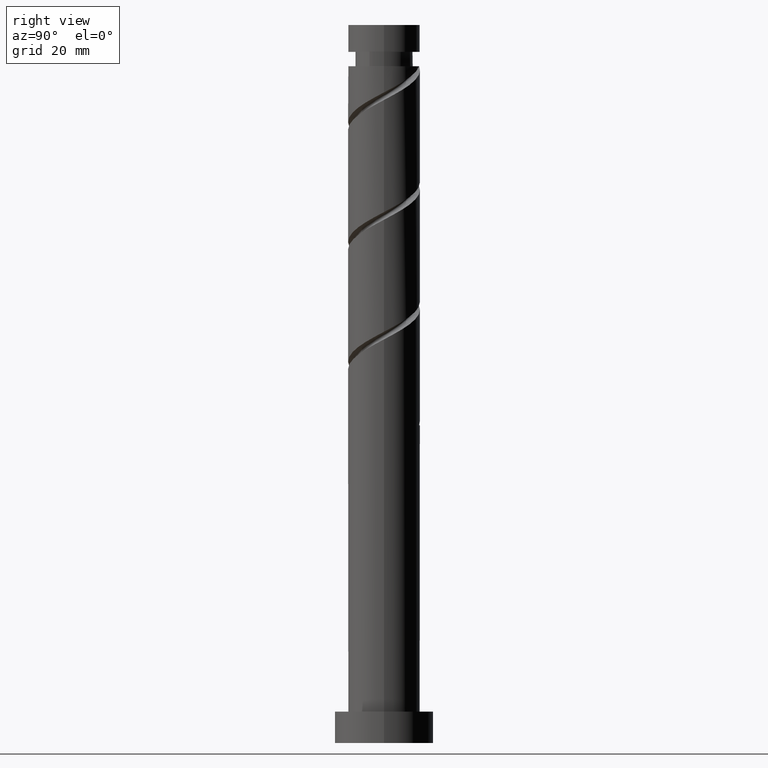
[diagram: clean part render]
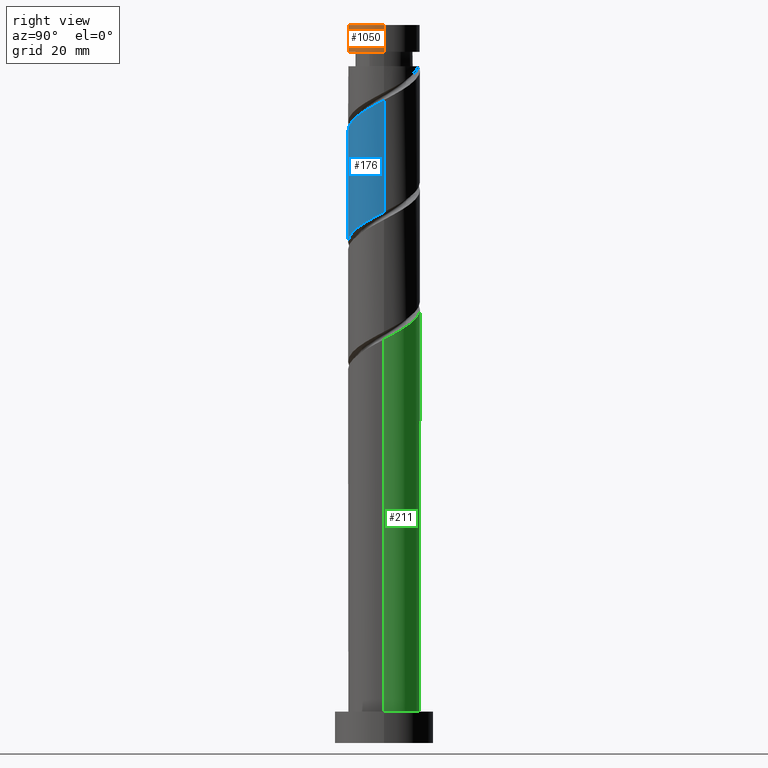
[diagram: same view with three faces highlighted in distinct colors, each labeled with its STEP entity id]
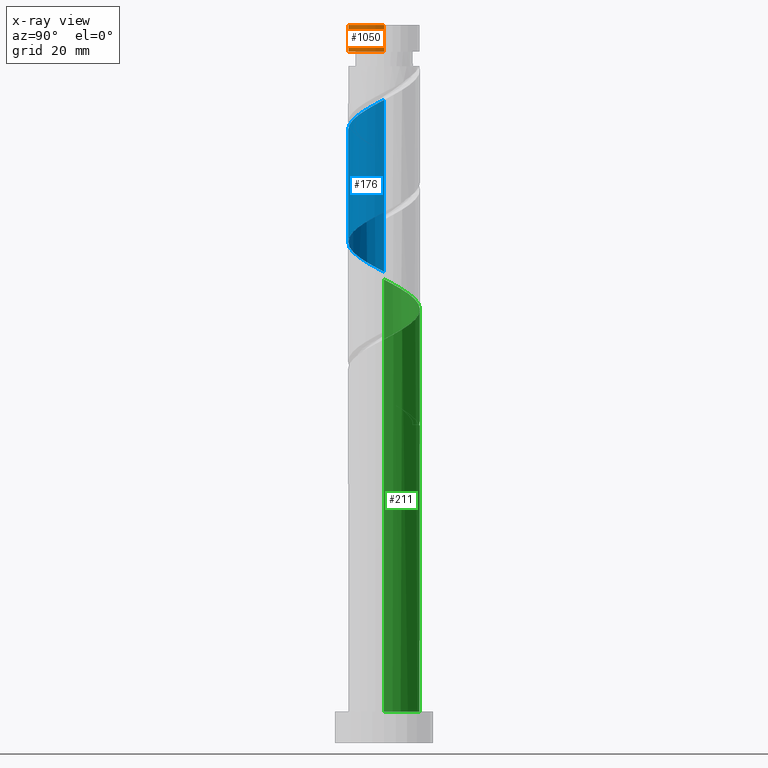
[diagram: x-ray of the same camera — body ghosted, the three highlighted faces saturated]
A machine part, right view with three faces highlighted in distinct colors.
The next image is the same camera in x-ray (body ghosted, the three faces saturated) — at least one of them is partly hidden behind the body in this view.
Their STEP definitions:

[orange] entity #1050 — the highlighted cylindrical surface (edge-blend (fillet) strip) has radius 8 mm, axis along (-0, -0, -1).
#19 = DIRECTION ( 'NONE',  ( -0.000000000000000000, -0.000000000000000000, -1.000000000000000000 ) ) ;
#96 = VERTEX_POINT ( 'NONE', #735 ) ;
#110 = CARTESIAN_POINT ( 'NONE',  ( -8.000000000000000000, 0.000000000000000000, 160.0000000000000000 ) ) ;
#141 = CIRCLE ( 'NONE', #1290, 7.999999999999994671 ) ;
#198 = CARTESIAN_POINT ( 'NONE',  ( 7.999999999999994671, 9.797174393178823685E-16, 153.9992103637192429 ) ) ;
#223 = EDGE_LOOP ( 'NONE', ( #719, #844, #999, #1308 ) ) ;
#235 = EDGE_CURVE ( 'NONE', #1448, #96, #141, .T. ) ;
#256 = DIRECTION ( 'NONE',  ( -1.000000000000000000, 0.000000000000000000, 0.000000000000000000 ) ) ;
#308 = VERTEX_POINT ( 'NONE', #693 ) ;
#370 = CARTESIAN_POINT ( 'NONE',  ( 8.000000000000000000, 9.797174393178825657E-16, 160.0000000000000000 ) ) ;
#379 = LINE ( 'NONE', #110, #715 ) ;
#430 = DIRECTION ( 'NONE',  ( -0.000000000000000000, -0.000000000000000000, -1.000000000000000000 ) ) ;
#451 = AXIS2_PLACEMENT_3D ( 'NONE', #1199, #1338, #460 ) ;
#460 = DIRECTION ( 'NONE',  ( 1.000000000000000000, 0.000000000000000000, 0.000000000000000000 ) ) ;
#638 = EDGE_CURVE ( 'NONE', #1061, #1448, #1163, .T. ) ;
#693 = CARTESIAN_POINT ( 'NONE',  ( -8.000000000000000000, 0.000000000000000000, 160.0000000000000000 ) ) ;
#700 = DIRECTION ( 'NONE',  ( -1.000000000000000000, 0.000000000000000000, 0.000000000000000000 ) ) ;
#715 = VECTOR ( 'NONE', #868, 1000.000000000000000 ) ;
#719 = ORIENTED_EDGE ( 'NONE', *, *, #638, .F. ) ;
#735 = CARTESIAN_POINT ( 'NONE',  ( -7.999999999999994671, 0.000000000000000000, 153.9992103637192429 ) ) ;
#801 = EDGE_CURVE ( 'NONE', #308, #1061, #1165, .T. ) ;
#844 = ORIENTED_EDGE ( 'NONE', *, *, #801, .F. ) ;
#868 = DIRECTION ( 'NONE',  ( -0.000000000000000000, -0.000000000000000000, -1.000000000000000000 ) ) ;
#928 = EDGE_CURVE ( 'NONE', #308, #96, #379, .T. ) ;
#999 = ORIENTED_EDGE ( 'NONE', *, *, #928, .T. ) ;
#1050 = ADVANCED_FACE ( 'NONE', ( #1141 ), #1646, .T. ) ;
#1061 = VERTEX_POINT ( 'NONE', #370 ) ;
#1090 = VECTOR ( 'NONE', #19, 1000.000000000000000 ) ;
#1141 = FACE_OUTER_BOUND ( 'NONE', #223, .T. ) ;
#1148 = DIRECTION ( 'NONE',  ( -0.000000000000000000, -0.000000000000000000, -1.000000000000000000 ) ) ;
#1163 = LINE ( 'NONE', #1556, #1090 ) ;
#1165 = CIRCLE ( 'NONE', #451, 8.000000000000000000 ) ;
#1199 = CARTESIAN_POINT ( 'NONE',  ( 0.000000000000000000, 0.000000000000000000, 160.0000000000000000 ) ) ;
#1207 = CARTESIAN_POINT ( 'NONE',  ( 0.000000000000000000, 0.000000000000000000, 153.9992103637192429 ) ) ;
#1290 = AXIS2_PLACEMENT_3D ( 'NONE', #1207, #430, #700 ) ;
#1308 = ORIENTED_EDGE ( 'NONE', *, *, #235, .F. ) ;
#1338 = DIRECTION ( 'NONE',  ( 0.000000000000000000, 0.000000000000000000, 1.000000000000000000 ) ) ;
#1448 = VERTEX_POINT ( 'NONE', #198 ) ;
#1512 = CARTESIAN_POINT ( 'NONE',  ( 0.000000000000000000, 0.000000000000000000, 160.0000000000000000 ) ) ;
#1556 = CARTESIAN_POINT ( 'NONE',  ( 8.000000000000000000, 9.797174393178825657E-16, 160.0000000000000000 ) ) ;
#1646 = CYLINDRICAL_SURFACE ( 'NONE', #1653, 8.000000000000000000 ) ;
#1653 = AXIS2_PLACEMENT_3D ( 'NONE', #1512, #1148, #256 ) ;

[blue] entity #176 — the highlighted cylindrical surface (edge-blend (fillet) strip) has radius 8 mm, axis along (-0, -0, -1).
#1 = CARTESIAN_POINT ( 'NONE',  ( 7.792847194175212877, -1.808737849506035777, 142.3143618788707556 ) ) ;
#4 = DIRECTION ( 'NONE',  ( -1.000000000000000000, 0.000000000000000000, 0.000000000000000000 ) ) ;
#12 = CYLINDRICAL_SURFACE ( 'NONE', #55, 8.000000000000000000 ) ;
#30 = CARTESIAN_POINT ( 'NONE',  ( 8.000000000000012434, -0.9162314190809917047, 142.7971292647803807 ) ) ;
#52 = CARTESIAN_POINT ( 'NONE',  ( 5.577882723393631892, -5.734738383227874436, 139.8901194546283193 ) ) ;
#55 = AXIS2_PLACEMENT_3D ( 'NONE', #1177, #1035, #4 ) ;
#63 = VERTEX_POINT ( 'NONE', #344 ) ;
#119 =( BOUNDED_CURVE ( )  B_SPLINE_CURVE ( 2, ( #406, #413, #1145, #1278, #673, #664, #1052, #542, #275, #1415, #1043, #1438, #1532, #1422, #768, #291, #268, #1158, #1021, #155, #534, #389, #1270, #1301, #787 ),
 .UNSPECIFIED., .F., .T. ) 
 B_SPLINE_CURVE_WITH_KNOTS ( ( 3, 2, 2, 2, 2, 2, 2, 2, 2, 2, 2, 2, 3 ),
 ( 0.5545252162417513286, 0.5568181818181817677, 0.5681818181818182323, 0.5795454545454545858, 0.5909090909090909394, 0.6022727272727272929, 0.6136363636363636465, 0.6250000000000000000, 0.6363636363636363535, 0.6477272727272727071, 0.6590909090909090606, 0.6704545454545454142, 0.6795252162417513286 ),
 .UNSPECIFIED. ) 
 CURVE ( )  GEOMETRIC_REPRESENTATION_ITEM ( )  RATIONAL_B_SPLINE_CURVE ( ( 0.9061101570135515759, 0.9072237824201336842, 0.9090909090909110590, 0.8998376744372134084, 0.9090909090909110590, 0.8998376744372134084, 0.9090909090909110590, 0.8998376744372134084, 0.9090909090909110590, 0.8998376744372134084, 0.9090909090909110590, 0.8998376744372134084, 0.9090909090909110590, 0.8998376744372134084, 0.9090909090909110590, 0.8998376744372134084, 0.9090909090909110590, 0.8998376744372134084, 0.9090909090909110590, 0.8998376744372134084, 0.9090909090909110590, 0.8998376744372134084, 0.9090909090909110590, 0.9017048011079908942, 0.9061101570135515759 ) ) 
 REPRESENTATION_ITEM ( '' )  );
#155 = CARTESIAN_POINT ( 'NONE',  ( -6.402413624641618561, -4.932759921154291405, 107.7689073334162231 ) ) ;
#159 = CARTESIAN_POINT ( 'NONE',  ( -7.986762466259771820, -0.4600275073779058754, 130.1931497576586025 ) ) ;
#161 = EDGE_CURVE ( 'NONE', #941, #1495, #119, .T. ) ;
#176 = ADVANCED_FACE ( 'NONE', ( #1541 ), #12, .T. ) ;
#225 = CARTESIAN_POINT ( 'NONE',  ( -8.000000000000000000, 6.790396599387439132E-15, 104.9819981763534571 ) ) ;
#268 = CARTESIAN_POINT ( 'NONE',  ( -3.736276773218405900, -7.073912345647820565, 109.5870891515980503 ) ) ;
#275 = CARTESIAN_POINT ( 'NONE',  ( 4.882551537609415959, -6.337246285460896189, 114.4355740000828661 ) ) ;
#287 = VECTOR ( 'NONE', #1126, 1000.000000000000000 ) ;
#291 = CARTESIAN_POINT ( 'NONE',  ( -2.719201724291183453, -7.611107845994204979, 110.1931497576586167 ) ) ;
#297 = EDGE_CURVE ( 'NONE', #63, #941, #1584, .T. ) ;
#303 = CARTESIAN_POINT ( 'NONE',  ( 2.719201724291185229, -7.611107845994222743, 138.0719376364465631 ) ) ;
#310 = LINE ( 'NONE', #1364, #287 ) ;
#320 = CARTESIAN_POINT ( 'NONE',  ( 6.402413624641629220, -4.932759921154301175, 140.4961800606889426 ) ) ;
#344 = CARTESIAN_POINT ( 'NONE',  ( 8.000000000000012434, 4.008427948537045530E-15, 143.2830892177516660 ) ) ;
#389 = CARTESIAN_POINT ( 'NONE',  ( -7.532789951889086844, -2.929180124448055977, 106.5567861212949623 ) ) ;
#406 = CARTESIAN_POINT ( 'NONE',  ( 8.000000000000000000, -8.645042366621013042E-15, 118.3153315096867715 ) ) ;
#413 = CARTESIAN_POINT ( 'NONE',  ( 7.999999999999998224, -0.2302042121905847893, 118.1932335049685605 ) ) ;
#417 = CARTESIAN_POINT ( 'NONE',  ( -6.470182492983659550, -4.704969554363553463, 132.6173921819010388 ) ) ;
#438 = ORIENTED_EDGE ( 'NONE', *, *, #1384, .T. ) ;
#534 = CARTESIAN_POINT ( 'NONE',  ( -6.967601788265351814, -3.930970022801174135, 107.1628467273556140 ) ) ;
#542 = CARTESIAN_POINT ( 'NONE',  ( 5.793709997158968505, -5.635241355040878197, 115.0416346061434609 ) ) ;
#560 = CARTESIAN_POINT ( 'NONE',  ( -7.146654988808340825, -3.774697753686219848, 132.0113315758404440 ) ) ;
#599 = VERTEX_POINT ( 'NONE', #1040 ) ;
#621 = CARTESIAN_POINT ( 'NONE',  ( 8.000000000000000000, -8.645042366621013042E-15, 118.3153315096867715 ) ) ;
#664 = CARTESIAN_POINT ( 'NONE',  ( 7.146654988808328390, -3.774697753686214963, 116.2537558182647075 ) ) ;
#673 = CARTESIAN_POINT ( 'NONE',  ( 7.533637742433263895, -2.691524171503018703, 116.8598164243253166 ) ) ;
#676 = CARTESIAN_POINT ( 'NONE',  ( -2.899365294310153995, -7.456117011565067898, 135.0416346061434751 ) ) ;
#686 = ORIENTED_EDGE ( 'NONE', *, *, #1287, .F. ) ;
#697 = CARTESIAN_POINT ( 'NONE',  ( 4.753351822145638117, -6.536716845301446810, 139.2840588485677529 ) ) ;
#704 = CARTESIAN_POINT ( 'NONE',  ( -0.6812897180552131005, -7.970937480627512173, 136.2537558182646649 ) ) ;
#768 = CARTESIAN_POINT ( 'NONE',  ( -1.591979899370593365, -7.839999999999999858, 110.7992103637192258 ) ) ;
#787 = CARTESIAN_POINT ( 'NONE',  ( -8.000000000000000000, 6.790396599387439132E-15, 104.9819981763534571 ) ) ;
#823 = CARTESIAN_POINT ( 'NONE',  ( 1.591979899370592699, -7.840000000000012292, 137.4658770303858830 ) ) ;
#831 = CARTESIAN_POINT ( 'NONE',  ( 6.967601788265361584, -3.930970022801182573, 141.1022406667495090 ) ) ;
#941 = VERTEX_POINT ( 'NONE', #621 ) ;
#950 = CARTESIAN_POINT ( 'NONE',  ( -3.971393078059878068, -7.039251215880919510, 134.4355740000828803 ) ) ;
#1021 = CARTESIAN_POINT ( 'NONE',  ( -5.577882723393624786, -5.734738383227860226, 108.3749679394768037 ) ) ;
#1026 = CARTESIAN_POINT ( 'NONE',  ( -4.882551537609428394, -6.337246285460905071, 133.8295133940222854 ) ) ;
#1035 = DIRECTION ( 'NONE',  ( -0.000000000000000000, -0.000000000000000000, -1.000000000000000000 ) ) ;
#1040 = CARTESIAN_POINT ( 'NONE',  ( -8.000000000000012434, -4.397305286827952944E-15, 129.9497558844183516 ) ) ;
#1043 = CARTESIAN_POINT ( 'NONE',  ( 2.899365294310144670, -7.456117011565058128, 113.2234527879616621 ) ) ;
#1052 = CARTESIAN_POINT ( 'NONE',  ( 6.470182492983646227, -4.704969554363547246, 115.6476952122040700 ) ) ;
#1063 = CARTESIAN_POINT ( 'NONE',  ( -8.000000000000014211, -0.2302042121905722993, 130.0718538891365199 ) ) ;
#1068 = CARTESIAN_POINT ( 'NONE',  ( 8.000000000000000000, 9.797174393178825657E-16, 160.0000000000000000 ) ) ;
#1085 =( BOUNDED_CURVE ( )  B_SPLINE_CURVE ( 2, ( #1204, #1063, #159, #1196, #1187, #560, #417, #1336, #1026, #950, #676, #1450, #704, #1305, #823, #303, #1595, #697, #52, #320, #831, #1180, #1, #30, #1537 ),
 .UNSPECIFIED., .F., .T. ) 
 B_SPLINE_CURVE_WITH_KNOTS ( ( 3, 2, 2, 2, 2, 2, 2, 2, 2, 2, 2, 2, 3 ),
 ( 0.5545252162417513286, 0.5568181818181818787, 0.5681818181818181213, 0.5795454545454545858, 0.5909090909090908283, 0.6022727272727272929, 0.6136363636363636465, 0.6250000000000000000, 0.6363636363636363535, 0.6477272727272727071, 0.6590909090909091717, 0.6704545454545454142, 0.6795252162417513286 ),
 .UNSPECIFIED. ) 
 CURVE ( )  GEOMETRIC_REPRESENTATION_ITEM ( )  RATIONAL_B_SPLINE_CURVE ( ( 0.9061101570135589034, 0.9072237824201410117, 0.9090909090909186085, 0.8998376744372208469, 0.9090909090909186085, 0.8998376744372208469, 0.9090909090909186085, 0.8998376744372208469, 0.9090909090909186085, 0.8998376744372208469, 0.9090909090909186085, 0.8998376744372208469, 0.9090909090909186085, 0.8998376744372208469, 0.9090909090909186085, 0.8998376744372208469, 0.9090909090909186085, 0.8998376744372208469, 0.9090909090909186085, 0.8998376744372208469, 0.9090909090909186085, 0.8998376744372208469, 0.9090909090909186085, 0.9017048011079984438, 0.9061101570135589034 ) ) 
 REPRESENTATION_ITEM ( '' )  );
#1126 = DIRECTION ( 'NONE',  ( -0.000000000000000000, -0.000000000000000000, -1.000000000000000000 ) ) ;
#1145 = CARTESIAN_POINT ( 'NONE',  ( 7.986762466259757609, -0.4600275073779088175, 118.0719376364465063 ) ) ;
#1158 = CARTESIAN_POINT ( 'NONE',  ( -4.753351822145630123, -6.536716845301434375, 108.9810285455374412 ) ) ;
#1177 = CARTESIAN_POINT ( 'NONE',  ( 0.000000000000000000, 0.000000000000000000, 160.0000000000000000 ) ) ;
#1180 = CARTESIAN_POINT ( 'NONE',  ( 7.532789951889099278, -2.929180124448062195, 141.7083012728101323 ) ) ;
#1187 = CARTESIAN_POINT ( 'NONE',  ( -7.533637742433276330, -2.691524171503019591, 131.4052709697798207 ) ) ;
#1190 = DIRECTION ( 'NONE',  ( -0.000000000000000000, -0.000000000000000000, -1.000000000000000000 ) ) ;
#1196 = CARTESIAN_POINT ( 'NONE',  ( -7.920620496058218052, -1.608350589319820889, 130.7992103637192542 ) ) ;
#1204 = CARTESIAN_POINT ( 'NONE',  ( -8.000000000000012434, -4.397305286827952944E-15, 129.9497558844183516 ) ) ;
#1226 = EDGE_LOOP ( 'NONE', ( #1636, #686, #438, #1399 ) ) ;
#1270 = CARTESIAN_POINT ( 'NONE',  ( -7.792847194175199554, -1.808737849506030892, 105.9507255152343959 ) ) ;
#1278 = CARTESIAN_POINT ( 'NONE',  ( 7.920620496058204729, -1.608350589319821333, 117.4658770303858972 ) ) ;
#1287 = EDGE_CURVE ( 'NONE', #599, #63, #1085, .T. ) ;
#1301 = CARTESIAN_POINT ( 'NONE',  ( -8.000000000000001776, -0.9162314190809796033, 105.4679581293247566 ) ) ;
#1305 = CARTESIAN_POINT ( 'NONE',  ( 0.4647580744500007799, -8.068892154005805395, 136.8598164243253166 ) ) ;
#1336 = CARTESIAN_POINT ( 'NONE',  ( -5.793709997158977387, -5.635241355040886191, 133.2234527879616621 ) ) ;
#1353 = VECTOR ( 'NONE', #1190, 1000.000000000000000 ) ;
#1364 = CARTESIAN_POINT ( 'NONE',  ( -8.000000000000000000, 0.000000000000000000, 160.0000000000000000 ) ) ;
#1384 = EDGE_CURVE ( 'NONE', #599, #1495, #310, .T. ) ;
#1399 = ORIENTED_EDGE ( 'NONE', *, *, #161, .F. ) ;
#1415 = CARTESIAN_POINT ( 'NONE',  ( 3.971393078059868742, -7.039251215880909740, 113.8295133940222854 ) ) ;
#1422 = CARTESIAN_POINT ( 'NONE',  ( -0.4647580744500036665, -8.068892154005791184, 111.4052709697798349 ) ) ;
#1438 = CARTESIAN_POINT ( 'NONE',  ( 1.827337510560423928, -7.872982807249202075, 112.6173921819010673 ) ) ;
#1450 = CARTESIAN_POINT ( 'NONE',  ( -1.827337510560427036, -7.872982807249216286, 135.6476952122040700 ) ) ;
#1495 = VERTEX_POINT ( 'NONE', #225 ) ;
#1532 = CARTESIAN_POINT ( 'NONE',  ( 0.6812897180552082155, -7.970937480627498850, 112.0113315758404156 ) ) ;
#1537 = CARTESIAN_POINT ( 'NONE',  ( 8.000000000000012434, 4.008427948537045530E-15, 143.2830892177516660 ) ) ;
#1541 = FACE_OUTER_BOUND ( 'NONE', #1226, .T. ) ;
#1584 = LINE ( 'NONE', #1068, #1353 ) ;
#1595 = CARTESIAN_POINT ( 'NONE',  ( 3.736276773218409009, -7.073912345647833000, 138.6779982425071296 ) ) ;
#1636 = ORIENTED_EDGE ( 'NONE', *, *, #297, .F. ) ;

[green] entity #211 — the highlighted cylindrical surface (edge-blend (fillet) strip) has radius 8 mm, axis along (-0, -0, -1).
#25 = CARTESIAN_POINT ( 'NONE',  ( -2.899365294310144670, 7.456117011565058128, 73.22345278796164791 ) ) ;
#41 = CARTESIAN_POINT ( 'NONE',  ( -5.577882723393631892, 5.734738383227874436, 99.89011945462834774 ) ) ;
#57 = CARTESIAN_POINT ( 'NONE',  ( -2.719201724291187006, 7.611107845994219190, 98.07193763644649209 ) ) ;
#105 = CARTESIAN_POINT ( 'NONE',  ( -6.402413624641629220, 4.932759921154300287, 73.82951339402228541 ) ) ;
#128 = CARTESIAN_POINT ( 'NONE',  ( 0.4647580744500015570, 8.068892154005789408, 71.40527096977987753 ) ) ;
#130 = EDGE_CURVE ( 'NONE', #253, #688, #964, .T. ) ;
#135 = CARTESIAN_POINT ( 'NONE',  ( -7.146654988808328390, 3.774697753686214963, 76.25375581826470750 ) ) ;
#170 = CARTESIAN_POINT ( 'NONE',  ( -1.591979899370591811, 7.840000000000012292, 97.46587703038589723 ) ) ;
#177 = VECTOR ( 'NONE', #1616, 1000.000000000000000 ) ;
#183 = CARTESIAN_POINT ( 'NONE',  ( 8.000000000000000000, 9.797174393178825657E-16, 7.000000000000000000 ) ) ;
#188 = VERTEX_POINT ( 'NONE', #904 ) ;
#208 = CARTESIAN_POINT ( 'NONE',  ( -8.000000000000000000, 0.000000000000000000, 160.0000000000000000 ) ) ;
#211 = ADVANCED_FACE ( 'NONE', ( #795 ), #1075, .T. ) ;
#253 = VERTEX_POINT ( 'NONE', #946 ) ;
#299 = CARTESIAN_POINT ( 'NONE',  ( 7.920620496058218052, 1.608350589319820445, 90.79921036371925425 ) ) ;
#312 = AXIS2_PLACEMENT_3D ( 'NONE', #356, #1374, #1474 ) ;
#313 = CARTESIAN_POINT ( 'NONE',  ( 1.591979899370594254, 7.839999999999999858, 70.79921036371924004 ) ) ;
#315 = EDGE_CURVE ( 'NONE', #396, #739, #757, .T. ) ;
#316 = CARTESIAN_POINT ( 'NONE',  ( 0.000000000000000000, 0.000000000000000000, 160.0000000000000000 ) ) ;
#333 = ORIENTED_EDGE ( 'NONE', *, *, #315, .F. ) ;
#341 = CARTESIAN_POINT ( 'NONE',  ( -8.000000000000017764, 0.9162314190809779380, 102.7971292647803949 ) ) ;
#351 = ORIENTED_EDGE ( 'NONE', *, *, #1003, .T. ) ;
#356 = CARTESIAN_POINT ( 'NONE',  ( 0.000000000000000000, 0.000000000000000000, 70.79921036371924004 ) ) ;
#363 = CARTESIAN_POINT ( 'NONE',  ( -8.000000000000012434, -4.397305286827952944E-15, 103.2830892177516802 ) ) ;
#366 = CARTESIAN_POINT ( 'NONE',  ( -5.577882723393631892, 5.734738383227874436, 73.22345278796164791 ) ) ;
#373 = EDGE_CURVE ( 'NONE', #396, #1254, #1625, .T. ) ;
#374 = CARTESIAN_POINT ( 'NONE',  ( -8.000000000000012434, -4.397305286827952944E-15, 76.61642255108502297 ) ) ;
#387 = CARTESIAN_POINT ( 'NONE',  ( -8.000000000000000000, 6.790396599387439132E-15, 78.31533150968679990 ) ) ;
#396 = VERTEX_POINT ( 'NONE', #1241 ) ;
#409 = CARTESIAN_POINT ( 'NONE',  ( -8.000000000000000000, 0.000000000000000000, 7.000000000000000000 ) ) ;
#411 = CARTESIAN_POINT ( 'NONE',  ( -5.793709997158964065, 5.635241355040879974, 75.04163460614347514 ) ) ;
#426 = EDGE_LOOP ( 'NONE', ( #333, #464, #351, #1575, #1378, #865, #1124, #1262 ) ) ;
#428 = AXIS2_PLACEMENT_3D ( 'NONE', #885, #1128, #1377 ) ;
#445 = CARTESIAN_POINT ( 'NONE',  ( 4.882551537609424841, 6.337246285460905071, 93.82951339402224278 ) ) ;
#464 = ORIENTED_EDGE ( 'NONE', *, *, #373, .T. ) ;
#481 = CARTESIAN_POINT ( 'NONE',  ( -7.792847194175211101, 1.808737849506036222, 102.3143618788707698 ) ) ;
#499 = CARTESIAN_POINT ( 'NONE',  ( -8.000000000000014211, 0.9162314190809796033, 76.13046259811370930 ) ) ;
#504 = DIRECTION ( 'NONE',  ( -0.000000000000000000, -0.000000000000000000, -1.000000000000000000 ) ) ;
#518 =( BOUNDED_CURVE ( )  B_SPLINE_CURVE ( 2, ( #387, #1033, #1405, #548, #523, #135, #766, #411, #1156, #647, #25, #540, #759, #128, #900 ),
 .UNSPECIFIED., .F., .T. ) 
 B_SPLINE_CURVE_WITH_KNOTS ( ( 3, 2, 2, 2, 2, 2, 2, 3 ),
 ( 0.9295252162417513286, 0.9318181818181817677, 0.9431818181818182323, 0.9545454545454545858, 0.9659090909090909394, 0.9772727272727272929, 0.9886363636363636465, 1.000000000000000000 ),
 .UNSPECIFIED. ) 
 CURVE ( )  GEOMETRIC_REPRESENTATION_ITEM ( )  RATIONAL_B_SPLINE_CURVE ( ( 0.9061101570135515759, 0.9072237824201336842, 0.9090909090909110590, 0.8998376744372134084, 0.9090909090909110590, 0.8998376744372134084, 0.9090909090909110590, 0.8998376744372134084, 0.9090909090909110590, 0.8998376744372134084, 0.9090909090909110590, 0.8998376744372134084, 0.9090909090909110590, 0.8998376744372134084, 0.9090909090909110590 ) ) 
 REPRESENTATION_ITEM ( '' )  );
#523 = CARTESIAN_POINT ( 'NONE',  ( -7.533637742433263895, 2.691524171503017815, 76.85981642432528815 ) ) ;
#540 = CARTESIAN_POINT ( 'NONE',  ( -1.827337510560423040, 7.872982807249202075, 72.61739218190105305 ) ) ;
#548 = CARTESIAN_POINT ( 'NONE',  ( -7.920620496058204729, 1.608350589319820001, 77.46587703038592565 ) ) ;
#556 = CARTESIAN_POINT ( 'NONE',  ( 8.000000000000014211, 0.2302042121905610583, 90.07185388913653412 ) ) ;
#558 = EDGE_CURVE ( 'NONE', #188, #813, #518, .T. ) ;
#571 = CARTESIAN_POINT ( 'NONE',  ( 7.533637742433276330, 2.691524171503018259, 91.40527096977984911 ) ) ;
#578 = CARTESIAN_POINT ( 'NONE',  ( -4.753351822145636341, 6.536716845301447698, 99.28405884856771024 ) ) ;
#588 = CARTESIAN_POINT ( 'NONE',  ( 7.986762466259771820, 0.4600275073779050428, 90.19314975765863096 ) ) ;
#595 = CARTESIAN_POINT ( 'NONE',  ( -8.000000000000000000, 0.000000000000000000, 160.0000000000000000 ) ) ;
#624 = CARTESIAN_POINT ( 'NONE',  ( -7.792847194175211101, 1.808737849506036222, 75.64769521220408421 ) ) ;
#647 = CARTESIAN_POINT ( 'NONE',  ( -3.971393078059868742, 7.039251215880909740, 73.82951339402225699 ) ) ;
#687 = CARTESIAN_POINT ( 'NONE',  ( -3.736276773218411229, 7.073912345647832112, 98.67799824250711538 ) ) ;
#688 = VERTEX_POINT ( 'NONE', #1054 ) ;
#695 = VERTEX_POINT ( 'NONE', #409 ) ;
#739 = VERTEX_POINT ( 'NONE', #848 ) ;
#745 = CARTESIAN_POINT ( 'NONE',  ( -7.532789951889097502, 2.929180124448063083, 75.04163460614347514 ) ) ;
#750 = CARTESIAN_POINT ( 'NONE',  ( -7.532789951889097502, 2.929180124448063083, 101.7083012728101750 ) ) ;
#755 = EDGE_CURVE ( 'NONE', #739, #188, #1478, .T. ) ;
#757 =( BOUNDED_CURVE ( )  B_SPLINE_CURVE ( 2, ( #804, #556, #588, #299, #571, #1309, #1058, #1469, #445, #1215, #834, #1095, #1576, #1316, #170, #57, #687, #578, #41, #1084, #1647, #750, #481, #341, #363 ),
 .UNSPECIFIED., .F., .T. ) 
 B_SPLINE_CURVE_WITH_KNOTS ( ( 3, 2, 2, 2, 2, 2, 2, 2, 2, 2, 2, 2, 3 ),
 ( 0.1795252162417511343, 0.1818181818181817677, 0.1931818181818182323, 0.2045454545454545858, 0.2159090909090909394, 0.2272727272727272929, 0.2386363636363636465, 0.2500000000000000000, 0.2613636363636363535, 0.2727272727272727071, 0.2840909090909090606, 0.2954545454545454142, 0.3045252162417513841 ),
 .UNSPECIFIED. ) 
 CURVE ( )  GEOMETRIC_REPRESENTATION_ITEM ( )  RATIONAL_B_SPLINE_CURVE ( ( 0.9061101570135587924, 0.9072237824201410117, 0.9090909090909186085, 0.8998376744372208469, 0.9090909090909186085, 0.8998376744372208469, 0.9090909090909186085, 0.8998376744372208469, 0.9090909090909186085, 0.8998376744372208469, 0.9090909090909186085, 0.8998376744372208469, 0.9090909090909186085, 0.8998376744372208469, 0.9090909090909186085, 0.8998376744372208469, 0.9090909090909186085, 0.8998376744372208469, 0.9090909090909186085, 0.8998376744372208469, 0.9090909090909186085, 0.8998376744372208469, 0.9090909090909186085, 0.9017048011079982217, 0.9061101570135590144 ) ) 
 REPRESENTATION_ITEM ( '' )  );
#759 = CARTESIAN_POINT ( 'NONE',  ( -0.6812897180552106580, 7.970937480627498850, 72.01133157584044397 ) ) ;
#766 = CARTESIAN_POINT ( 'NONE',  ( -6.470182492983646227, 4.704969554363548134, 75.64769521220408421 ) ) ;
#795 = FACE_OUTER_BOUND ( 'NONE', #426, .T. ) ;
#804 = CARTESIAN_POINT ( 'NONE',  ( 8.000000000000012434, 4.008427948537046319E-15, 89.94975588441830894 ) ) ;
#813 = VERTEX_POINT ( 'NONE', #313 ) ;
#827 = DIRECTION ( 'NONE',  ( -0.000000000000000000, -0.000000000000000000, -1.000000000000000000 ) ) ;
#834 = CARTESIAN_POINT ( 'NONE',  ( 2.899365294310150443, 7.456117011565067898, 95.04163460614348935 ) ) ;
#848 = CARTESIAN_POINT ( 'NONE',  ( -8.000000000000012434, -4.397305286827952944E-15, 103.2830892177516802 ) ) ;
#861 = CARTESIAN_POINT ( 'NONE',  ( -3.736276773218411229, 7.073912345647832112, 72.01133157584042976 ) ) ;
#865 = ORIENTED_EDGE ( 'NONE', *, *, #1589, .T. ) ;
#885 = CARTESIAN_POINT ( 'NONE',  ( 0.000000000000000000, 0.000000000000000000, 7.000000000000000000 ) ) ;
#900 = CARTESIAN_POINT ( 'NONE',  ( 1.591979899370594254, 7.839999999999999858, 70.79921036371924004 ) ) ;
#902 = VECTOR ( 'NONE', #1228, 1000.000000000000000 ) ;
#904 = CARTESIAN_POINT ( 'NONE',  ( -8.000000000000000000, 6.790396599387439132E-15, 78.31533150968679990 ) ) ;
#946 = CARTESIAN_POINT ( 'NONE',  ( -1.591979899370591589, 7.840000000000012292, 70.79921036371924004 ) ) ;
#964 =( BOUNDED_CURVE ( )  B_SPLINE_CURVE ( 2, ( #1524, #1507, #861, #1372, #366, #105, #1515, #745, #624, #499, #374 ),
 .UNSPECIFIED., .F., .T. ) 
 B_SPLINE_CURVE_WITH_KNOTS ( ( 3, 2, 2, 2, 2, 3 ),
 ( 0.000000000000000000, 0.01136363636363635528, 0.02272727272727271056, 0.03409090909090906063, 0.04545454545454542111, 0.05452521624175136333 ),
 .UNSPECIFIED. ) 
 CURVE ( )  GEOMETRIC_REPRESENTATION_ITEM ( )  RATIONAL_B_SPLINE_CURVE ( ( 0.9090909090909186085, 0.8998376744372208469, 0.9090909090909186085, 0.8998376744372208469, 0.9090909090909186085, 0.8998376744372208469, 0.9090909090909186085, 0.8998376744372208469, 0.9090909090909186085, 0.9017048011079983327, 0.9061101570135590144 ) ) 
 REPRESENTATION_ITEM ( '' )  );
#1003 = EDGE_CURVE ( 'NONE', #1254, #695, #1324, .T. ) ;
#1033 = CARTESIAN_POINT ( 'NONE',  ( -7.999999999999998224, 0.2302042121905832073, 78.19323350496857472 ) ) ;
#1054 = CARTESIAN_POINT ( 'NONE',  ( -8.000000000000012434, -4.397305286827952944E-15, 76.61642255108502297 ) ) ;
#1058 = CARTESIAN_POINT ( 'NONE',  ( 6.470182492983660438, 4.704969554363550799, 92.61739218190103884 ) ) ;
#1075 = CYLINDRICAL_SURFACE ( 'NONE', #1077, 8.000000000000000000 ) ;
#1077 = AXIS2_PLACEMENT_3D ( 'NONE', #316, #827, #1609 ) ;
#1084 = CARTESIAN_POINT ( 'NONE',  ( -6.402413624641629220, 4.932759921154300287, 100.4961800606889284 ) ) ;
#1095 = CARTESIAN_POINT ( 'NONE',  ( 1.827337510560428147, 7.872982807249216286, 95.64769521220408421 ) ) ;
#1124 = ORIENTED_EDGE ( 'NONE', *, *, #558, .F. ) ;
#1128 = DIRECTION ( 'NONE',  ( 0.000000000000000000, 0.000000000000000000, 1.000000000000000000 ) ) ;
#1129 = CARTESIAN_POINT ( 'NONE',  ( 8.000000000000000000, 9.797174393178825657E-16, 160.0000000000000000 ) ) ;
#1156 = CARTESIAN_POINT ( 'NONE',  ( -4.882551537609416847, 6.337246285460895301, 74.43557400008285185 ) ) ;
#1215 = CARTESIAN_POINT ( 'NONE',  ( 3.971393078059876292, 7.039251215880921286, 94.43557400008288027 ) ) ;
#1228 = DIRECTION ( 'NONE',  ( -0.000000000000000000, -0.000000000000000000, -1.000000000000000000 ) ) ;
#1241 = CARTESIAN_POINT ( 'NONE',  ( 8.000000000000012434, 4.008427948537045530E-15, 89.94975588441830894 ) ) ;
#1254 = VERTEX_POINT ( 'NONE', #183 ) ;
#1262 = ORIENTED_EDGE ( 'NONE', *, *, #755, .F. ) ;
#1309 = CARTESIAN_POINT ( 'NONE',  ( 7.146654988808342601, 3.774697753686217183, 92.01133157584047240 ) ) ;
#1316 = CARTESIAN_POINT ( 'NONE',  ( -0.4647580744499998362, 8.068892154005805395, 96.85981642432531658 ) ) ;
#1324 = CIRCLE ( 'NONE', #428, 8.000000000000000000 ) ;
#1372 = CARTESIAN_POINT ( 'NONE',  ( -4.753351822145636341, 6.536716845301447698, 72.61739218190105305 ) ) ;
#1374 = DIRECTION ( 'NONE',  ( 0.000000000000000000, -0.000000000000000000, -1.000000000000000000 ) ) ;
#1377 = DIRECTION ( 'NONE',  ( 1.000000000000000000, 0.000000000000000000, 0.000000000000000000 ) ) ;
#1378 = ORIENTED_EDGE ( 'NONE', *, *, #130, .F. ) ;
#1385 = VECTOR ( 'NONE', #504, 1000.000000000000000 ) ;
#1405 = CARTESIAN_POINT ( 'NONE',  ( -7.986762466259757609, 0.4600275073779075963, 78.07193763644652051 ) ) ;
#1469 = CARTESIAN_POINT ( 'NONE',  ( 5.793709997158980940, 5.635241355040885303, 93.22345278796166212 ) ) ;
#1474 = DIRECTION ( 'NONE',  ( -1.000000000000000000, 0.000000000000000000, 0.000000000000000000 ) ) ;
#1478 = LINE ( 'NONE', #595, #177 ) ;
#1491 = CIRCLE ( 'NONE', #312, 8.000000000000000000 ) ;
#1505 = EDGE_CURVE ( 'NONE', #688, #695, #1613, .T. ) ;
#1507 = CARTESIAN_POINT ( 'NONE',  ( -2.719201724291187006, 7.611107845994219190, 71.40527096977986332 ) ) ;
#1515 = CARTESIAN_POINT ( 'NONE',  ( -6.967601788265361584, 3.930970022801182573, 74.43557400008288027 ) ) ;
#1524 = CARTESIAN_POINT ( 'NONE',  ( -1.591979899370591811, 7.840000000000012292, 70.79921036371925425 ) ) ;
#1575 = ORIENTED_EDGE ( 'NONE', *, *, #1505, .F. ) ;
#1576 = CARTESIAN_POINT ( 'NONE',  ( 0.6812897180552140997, 7.970937480627512173, 96.25375581826469329 ) ) ;
#1589 = EDGE_CURVE ( 'NONE', #253, #813, #1491, .T. ) ;
#1609 = DIRECTION ( 'NONE',  ( -1.000000000000000000, 0.000000000000000000, 0.000000000000000000 ) ) ;
#1613 = LINE ( 'NONE', #208, #902 ) ;
#1616 = DIRECTION ( 'NONE',  ( -0.000000000000000000, -0.000000000000000000, -1.000000000000000000 ) ) ;
#1625 = LINE ( 'NONE', #1129, #1385 ) ;
#1647 = CARTESIAN_POINT ( 'NONE',  ( -6.967601788265361584, 3.930970022801182573, 101.1022406667495375 ) ) ;